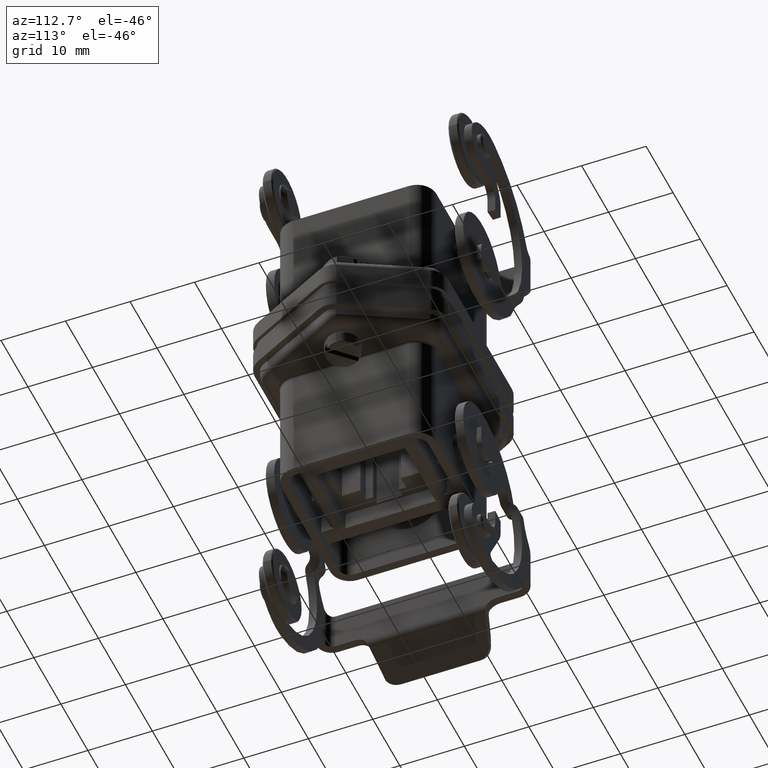
[diagram: clean part render]
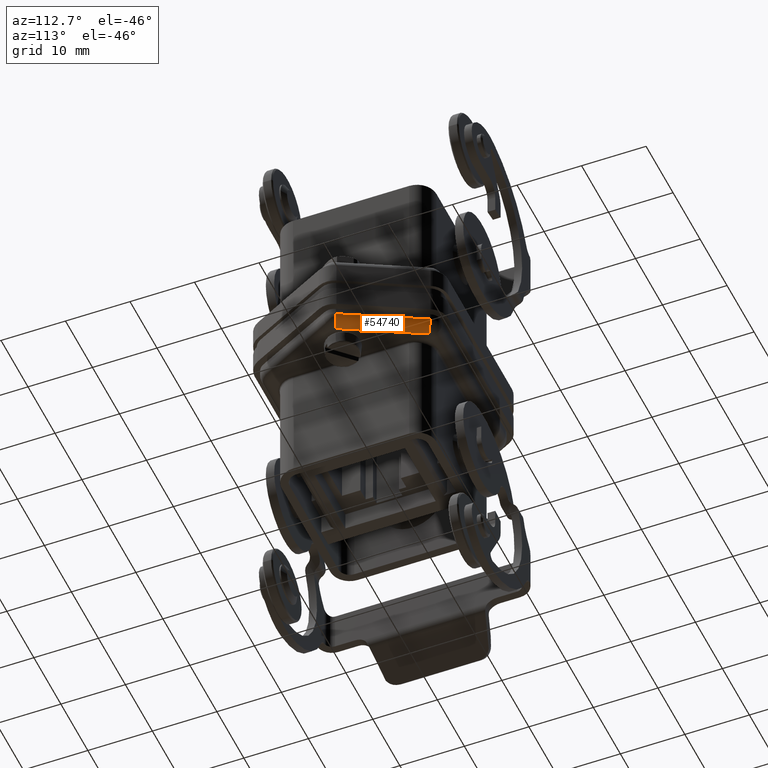
[diagram: same view with one face highlighted and labeled with its STEP entity id]
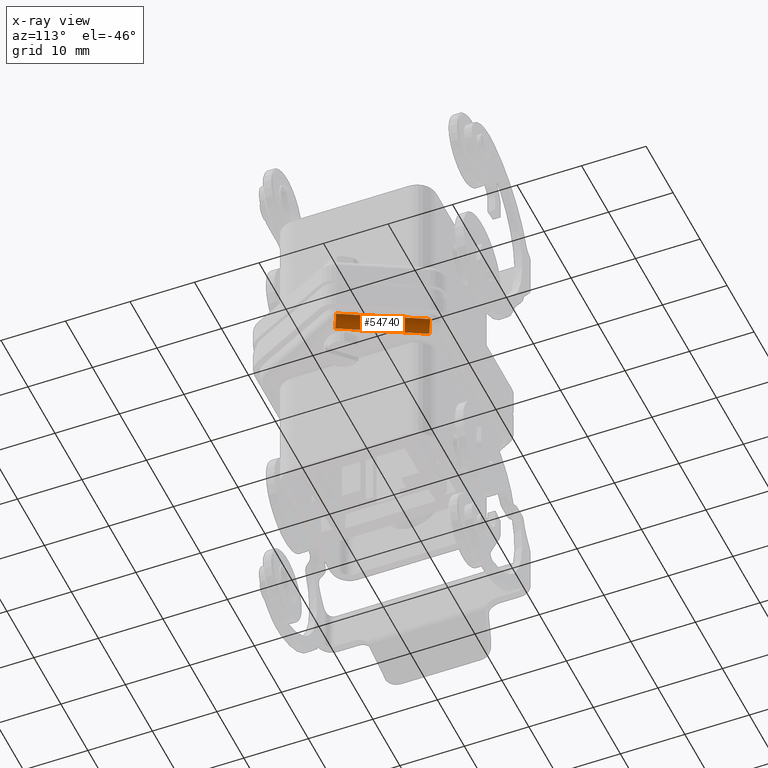
[diagram: x-ray of the same camera — body ghosted, the highlighted face saturated]
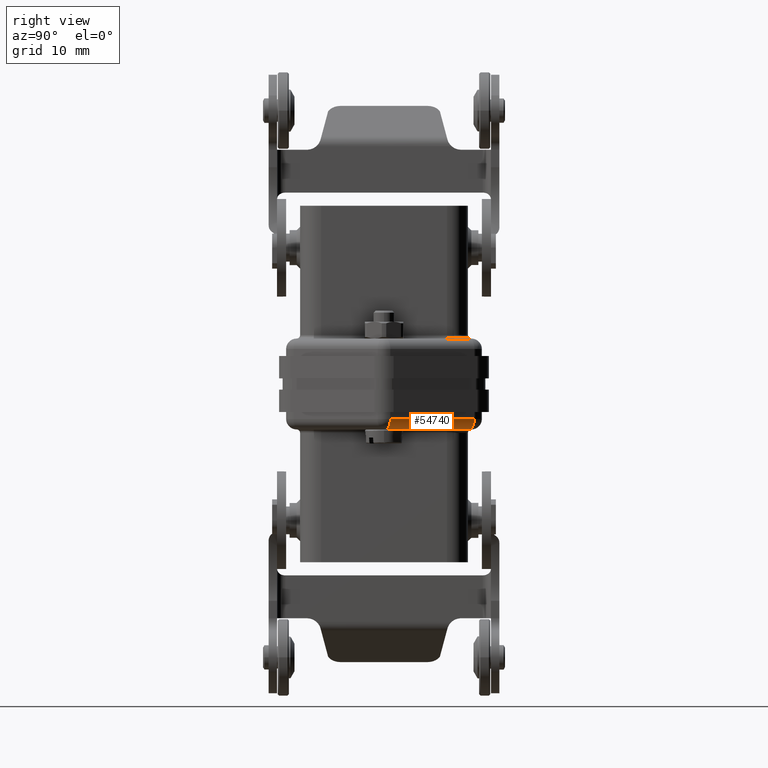
[diagram: same view with one face highlighted and labeled with its STEP entity id]
A machine part, auxiliary view. The second image highlights one B-rep face of the part: STEP entity #54740.
The next image is the same camera in x-ray: the body ghosted, the highlighted face saturated — about 0% of this face is hidden behind the body in this view.
A second angle (right view) of the same face is appended — the face is thin or edge-on in the first view.
In plain terms, the highlighted cylindrical surface (edge-blend (fillet) strip) has radius 1.5 mm, axis along (-0.4581, 0.8889, 0).
Its self-contained STEP definition (entity closure, byte-faithful):
#46710=CARTESIAN_POINT('',(13.5931193393513,12.9162456945817,-24.5));
#46720=VERTEX_POINT('',#46710);
#46890=CARTESIAN_POINT('',(12.2597860060179,12.2290614236454,-26.));
#46900=VERTEX_POINT('',#46890);
#46930=CARTESIAN_POINT('',(12.2597860060179,12.2290614236454,-24.5));
#46940=DIRECTION('',(-0.458122847290852,0.888888888888889,-0.));
#46950=DIRECTION('',(0.888888888888889,0.458122847290852,0.));
#46960=AXIS2_PLACEMENT_3D('',#46930,#46940,#46950);
#46970=CIRCLE('',#46960,1.50000000000001);
#46980=EDGE_CURVE('',#46720,#46900,#46970,.T.);
#49790=CARTESIAN_POINT('',(18.4444444444445,0.229061423645428,-24.5));
#49800=DIRECTION('',(-0.458122847290852,0.888888888888888,-0.));
#49810=DIRECTION('',(0.888888888888888,0.458122847290852,0.));
#49820=AXIS2_PLACEMENT_3D('',#49790,#49800,#49810);
#49830=CIRCLE('',#49820,1.5);
#49840=CARTESIAN_POINT('',(19.7777777777778,0.916245694581705,-24.5));
#49850=VERTEX_POINT('',#49840);
#49860=CARTESIAN_POINT('',(18.4444444444445,0.229061423645428,-26.));
#49870=VERTEX_POINT('',#49860);
#49880=EDGE_CURVE('',#49850,#49870,#49830,.T.);
#54530=CARTESIAN_POINT('',(16.5555555555556,3.89404420197224,-24.5));
#54540=DIRECTION('',(-0.458122847290851,0.888888888888889,1.02317E-32));
#54550=DIRECTION('',(0.628539361054708,0.323941771935849,
-0.707106781186549));
#54560=AXIS2_PLACEMENT_3D('',#54530,#54540,#54550);
#54570=CYLINDRICAL_SURFACE('',#54560,1.5);
#54580=CARTESIAN_POINT('',(13.5931193393513,12.9162456945817,-24.5));
#54590=DIRECTION('',(0.458122847290851,-0.888888888888889,0.));
#54600=VECTOR('',#54590,13.5);
#54610=LINE('',#54580,#54600);
#54620=EDGE_CURVE('',#46720,#49850,#54610,.T.);
#54630=ORIENTED_EDGE('',*,*,#54620,.T.);
#54640=ORIENTED_EDGE('',*,*,#46980,.F.);
#54650=CARTESIAN_POINT('',(18.4444444444445,0.229061423645428,-26.));
#54660=DIRECTION('',(-0.458122847290852,0.888888888888888,-0.));
#54670=VECTOR('',#54660,13.5);
#54680=LINE('',#54650,#54670);
#54690=EDGE_CURVE('',#49870,#46900,#54680,.T.);
#54700=ORIENTED_EDGE('',*,*,#54690,.T.);
#54710=ORIENTED_EDGE('',*,*,#49880,.T.);
#54720=EDGE_LOOP('',(#54710,#54700,#54640,#54630));
#54730=FACE_OUTER_BOUND('',#54720,.T.);
#54740=ADVANCED_FACE('',(#54730),#54570,.T.);